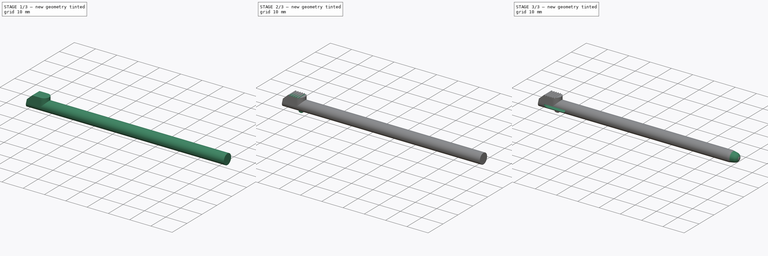
[diagram: build sequence overview — one tinted view per stage of 3, left to right]
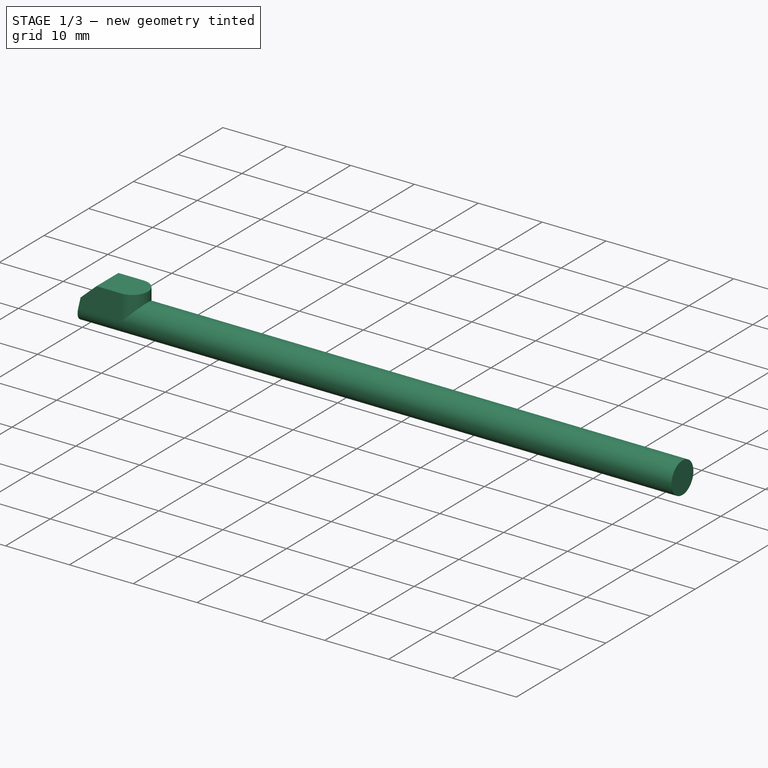
[diagram: stage 1 of 3 — iso view after this stage's code; geometry added in this stage tinted green]
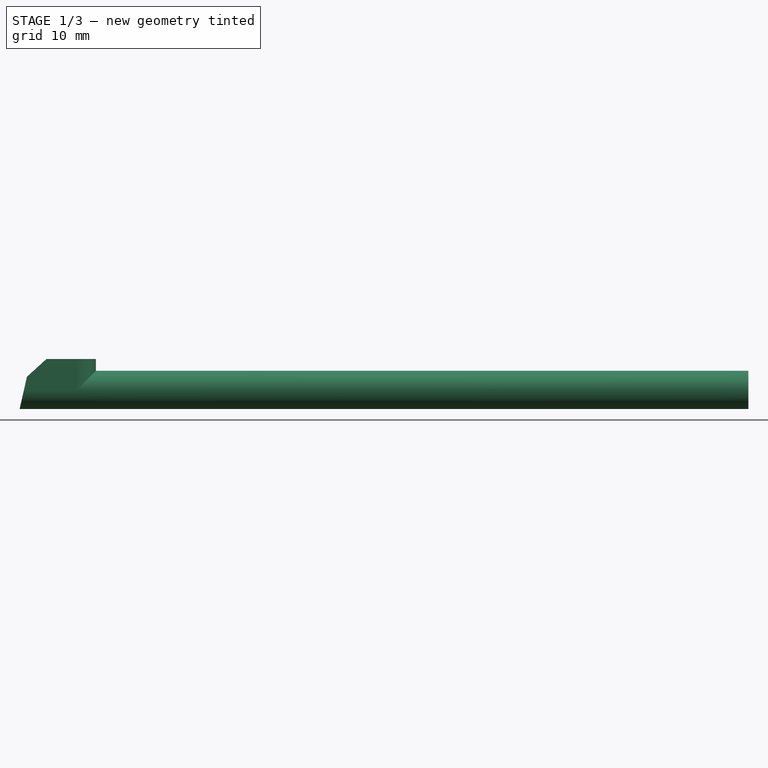
[diagram: stage 1 of 3 — front view after this stage's code; geometry added in this stage tinted green]
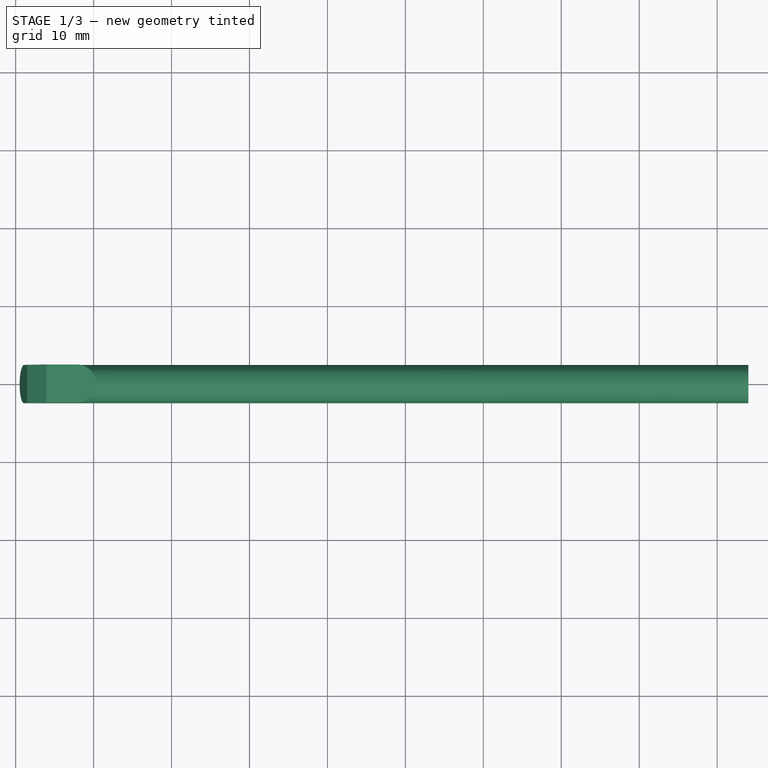
[diagram: stage 1 of 3 — top view after this stage's code; geometry added in this stage tinted green]
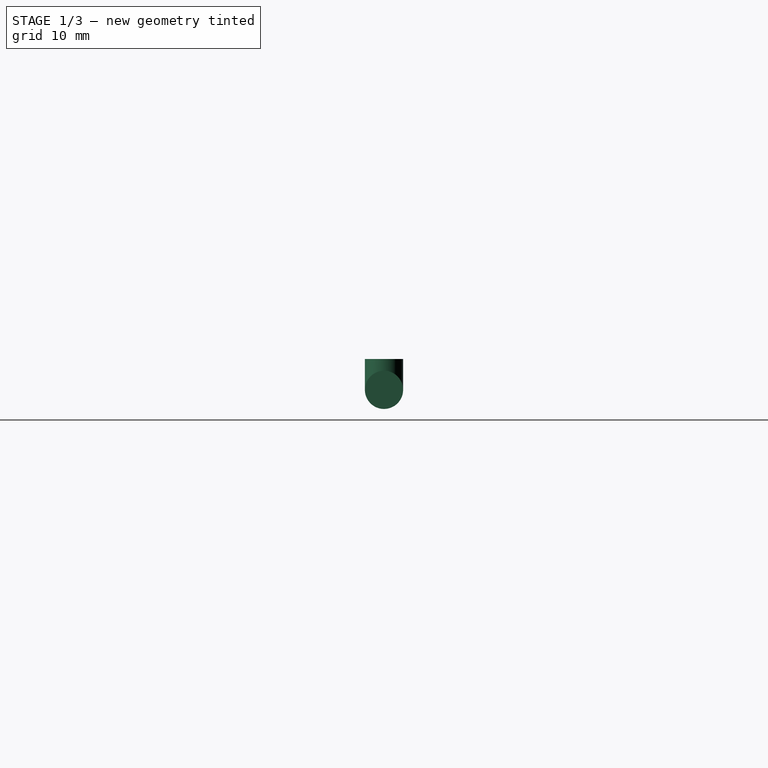
[diagram: stage 1 of 3 — right view after this stage's code; geometry added in this stage tinted green]
FCSTD DOCUMENT  (FreeCAD 1.0R39109 (Git))
Label: 2DS Stylus
License: Creative Commons Attribution-NonCommercial-ShareAlike
LicenseURL: http://creativecommons.org/licenses/by-nc-sa/4.0/
objects: Sketcher::SketchObject×8, PartDesign::Pocket×4, PartDesign::Pad×3, PartDesign::Groove×1, PartDesign::Body×1
note: 41 computed .brp shape members not serialized (recipe doc carries the construction recipe); baked Part::Feature solids carry a one-line shape summary decoded from their .brp

FEATURE [Sketcher::SketchObject] Sketch
  ArcFitTolerance = 0
  AttachmentSupport = -> [YZ_Plane]
  FullyConstrained = true
  MakeInternals = false
  MapMode = 5
  Placement = pos=(0,0,0) rot=(0.57735,0.57735,0.57735;2.0944rad)
  sketch-geometry (1):
    g0: Circle CenterX=0 CenterY=0 CenterZ=0 NormalX=0 NormalY=0 NormalZ=1 AngleXU=0 Radius=2.45
  constraints (2):
    c: Coincident(g0,g-1)
    c: Diameter(g0) = 4.9
FEATURE [PartDesign::Pad] Pad
  Direction = (1,0,0)
  Length = 94
  Length2 = 10
  Placement = pos=(0,0,0) rot=(0.57735,0.57735,0.57735;2.0944rad)
  Profile = -> Sketch
  ReferenceAxis = -> Sketch [N_Axis]
  Suppressed = false
  Type = 0
FEATURE [Sketcher::SketchObject] Sketch001
  ArcFitTolerance = 0
  AttachmentSupport = -> [XY_Plane]
  ExternalGeometry = -> [Pad]
  FullyConstrained = true
  MakeInternals = false
  MapMode = 5
  sketch-geometry (7):
    g0: LineSegment [constr] StartX=0 StartY=2.45 StartZ=0 EndX=10.3 EndY=2.45 EndZ=0
    g1: LineSegment [constr] StartX=10.3 StartY=2.45 StartZ=0 EndX=10.3 EndY=-2.45 EndZ=0
    g2: LineSegment [constr] StartX=10.3 StartY=-2.45 StartZ=0 EndX=0 EndY=-2.45 EndZ=0
    g3: LineSegment StartX=0 StartY=-2.45 StartZ=0 EndX=0 EndY=2.45 EndZ=0
    g4: ArcOfCircle CenterX=7.85 CenterY=6.95e-14 CenterZ=0 NormalX=0 NormalY=0 NormalZ=1 AngleXU=0 Radius=2.45 StartAngle=4.71239 EndAngle=7.85398
    g5: LineSegment StartX=0 StartY=2.45 StartZ=0 EndX=7.85 EndY=2.45 EndZ=0
    g6: LineSegment StartX=7.85 StartY=-2.45 StartZ=0 EndX=0 EndY=-2.45 EndZ=0
  constraints (17):
    c: Coincident(g0,g1)
    c: Coincident(g1,g2)
    c: Coincident(g2,g3)
    c: Coincident(g3,g0)
    c: Horizontal(g0)
    c: Horizontal(g2)
    c: Vertical(g1)
    c: Coincident(g0,g-3)
    c: Coincident(g2,g-3)
    c: Distance(g0) = 10.3
    c: Tangent(g4,g1)
    c: Tangent(g4,g0) = 1.5708
    c: Tangent(g4,g2) = 1.5708
    c: Coincident(g5,g3)
    c: Coincident(g5,g4)
    c: Coincident(g6,g4)
    c: Coincident(g6,g3)
FEATURE [PartDesign::Pad] Pad001
  BaseFeature = -> Pad
  Direction = (0,0,1)
  Length = 3.95
  Length2 = 10
  Placement = pos=(0,0,0) rot=(0.57735,0.57735,0.57735;2.0944rad)
  Profile = -> Sketch001
  ReferenceAxis = -> Sketch001 [N_Axis]
  Refine = true
  Suppressed = false
  Type = 0
FEATURE [Sketcher::SketchObject] Sketch002
  ArcFitTolerance = 0
  AttachmentSupport = -> [Pad001]
  ExternalGeometry = -> [Pad001]
  FullyConstrained = true
  MakeInternals = false
  MapMode = 5
  Placement = pos=(4.28e-14,-2.45,3e-16) rot=(0.57735,0.57735,-0.57735;2.0944rad)
  sketch-geometry (14):
    g0: LineSegment [constr] StartX=-1.95 StartY=0 StartZ=0 EndX=-1.95 EndY=1 EndZ=0
    g1: LineSegment [constr] StartX=-1.95 StartY=0 StartZ=0 EndX=2.45 EndY=1.9e-15 EndZ=0
    g2: LineSegment [constr] StartX=-3.95 StartY=-4.44e-14 StartZ=0 EndX=-3.95 EndY=3.2 EndZ=0
    g3: LineSegment [constr] StartX=2.45 StartY=0.512751 StartZ=0 EndX=2.45 EndY=1.9e-15 EndZ=0
    g4: LineSegment [constr] StartX=-3.95 StartY=3.2 StartZ=0 EndX=-1.95 EndY=1 EndZ=0
    g5: LineSegment [constr] StartX=-1.95 StartY=1 StartZ=0 EndX=2.45 EndY=1.9e-15 EndZ=0
    g6: LineSegment [constr] StartX=0.25 StartY=0.5 StartZ=0 EndX=0.360811 EndY=0.987566 EndZ=0
    g7: LineSegment [constr] StartX=-2.95 StartY=2.1 StartZ=0 EndX=-2.58003 EndY=2.43634 EndZ=0
    g8: LineSegment [constr] StartX=-1.95 StartY=1 StartZ=0 EndX=-1.68582 EndY=1.45271 EndZ=0
    g9: LineSegment StartX=-3.95 StartY=3.9433 StartZ=0 EndX=-1.68582 EndY=1.45271 EndZ=0
    g10: LineSegment StartX=-1.68582 StartY=1.45271 StartZ=0 EndX=2.45 EndY=0.512751 EndZ=0
    g11: LineSegment StartX=-3.95 StartY=3.9433 StartZ=0 EndX=-3.95 EndY=-0.487249 EndZ=0
    g12: LineSegment StartX=-3.95 StartY=-0.487249 StartZ=0 EndX=2.45 EndY=-0.487249 EndZ=0
    g13: LineSegment StartX=2.45 StartY=-0.487249 StartZ=0 EndX=2.45 EndY=0.512751 EndZ=0
  constraints (38):
    c: Vertical(g0)
    c: Distance(g0) = 1
    c: Coincident(g1,g-3)
    c: Distance(g1) = 4.4
    c: Coincident(g0,g1)
    c: PointOnObject(g0,g-1)
    c: Coincident(g2,g-4)
    c: PointOnObject(g2,g-4)
    c: Distance(g2) = 3.2
    c: Coincident(g3,g1)
    c: Vertical(g3)
    c: Coincident(g4,g2)
    c: Coincident(g4,g0)
    c: Coincident(g5,g4)
    c: Coincident(g5,g1)
    c: Symmetric(g4,g4,g7)
    c: Symmetric(g4,g5,g6)
    c: Coincident(g8,g4)
    c: PointOnObject(g9,g-4)
    c: Coincident(g9,g8)
    c: Coincident(g10,g9)
    c: Coincident(g10,g3)
    c: Perpendicular(g7,g4)
    c: Perpendicular(g7,g9)
    c: PointOnObject(g7,g9)
    c: PointOnObject(g6,g10)
    c: Perpendicular(g6,g10)
    c: Perpendicular(g6,g5)
    c: Distance(g7) = 0.5
    c: Equal(g7,g6)
    c: Coincident(g11,g9)
    c: Vertical(g11)
    c: Coincident(g12,g11)
    c: Horizontal(g12)
    c: Coincident(g13,g12)
    c: Coincident(g13,g10)
    c: Vertical(g13)
    c: Distance(g13) = 1
FEATURE [PartDesign::Pocket] Pocket
  BaseFeature = -> Pad001
  Direction = (-1.74e-14,1,1e-16)
  Length = 5
  Length2 = 5
  Placement = pos=(0,0,0) rot=(0.57735,0.57735,0.57735;2.0944rad)
  Profile = -> Sketch002
  ReferenceAxis = -> Sketch002 [N_Axis]
  Suppressed = false
  Type = 0
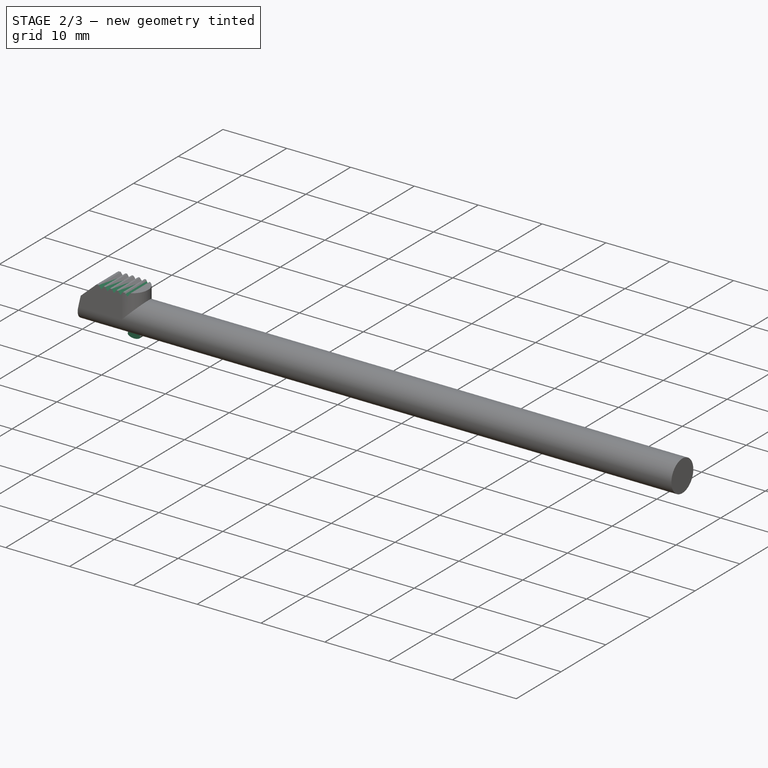
[diagram: stage 2 of 3 — iso view after this stage's code; geometry added in this stage tinted green]
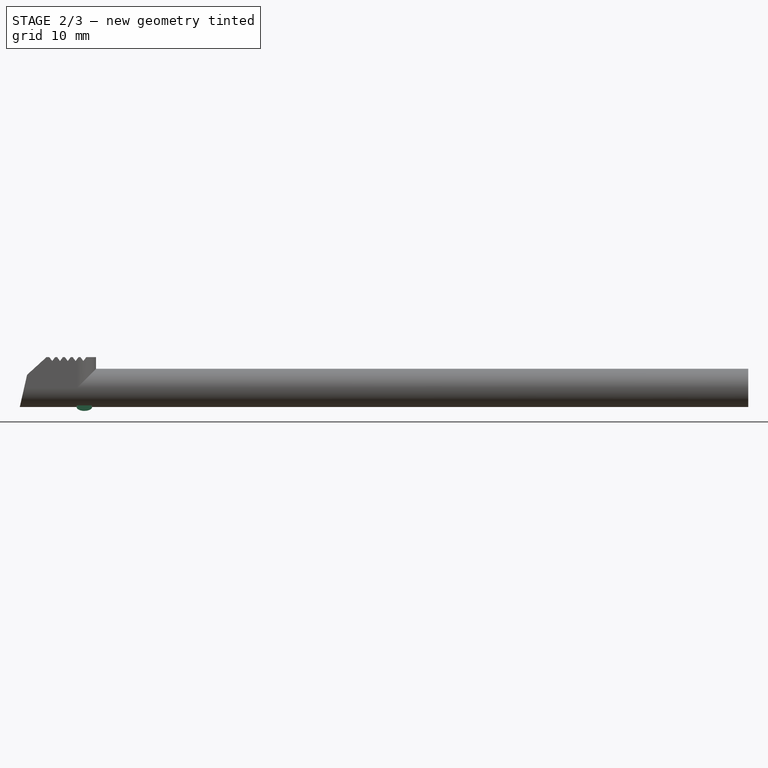
[diagram: stage 2 of 3 — front view after this stage's code; geometry added in this stage tinted green]
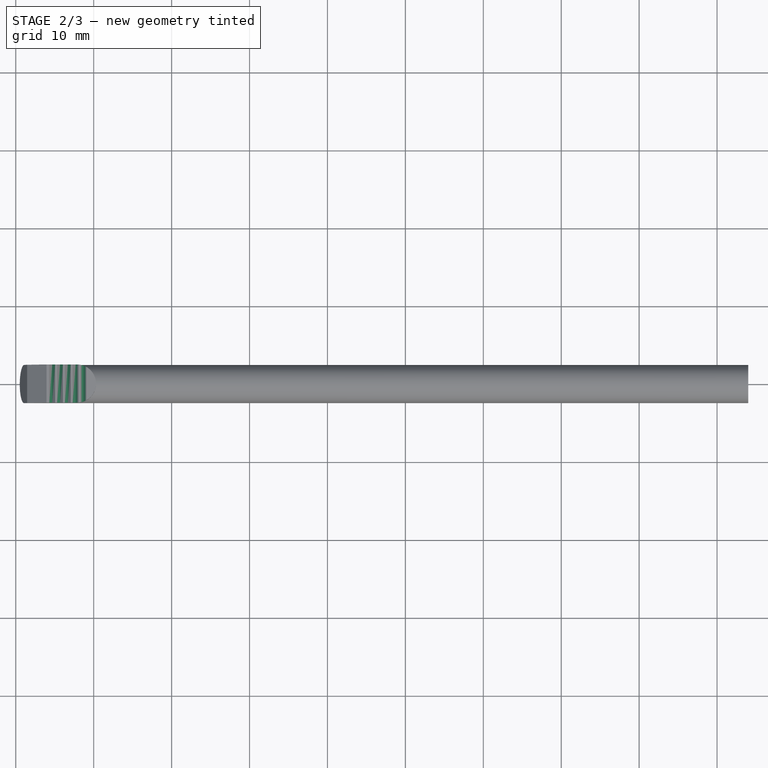
[diagram: stage 2 of 3 — top view after this stage's code; geometry added in this stage tinted green]
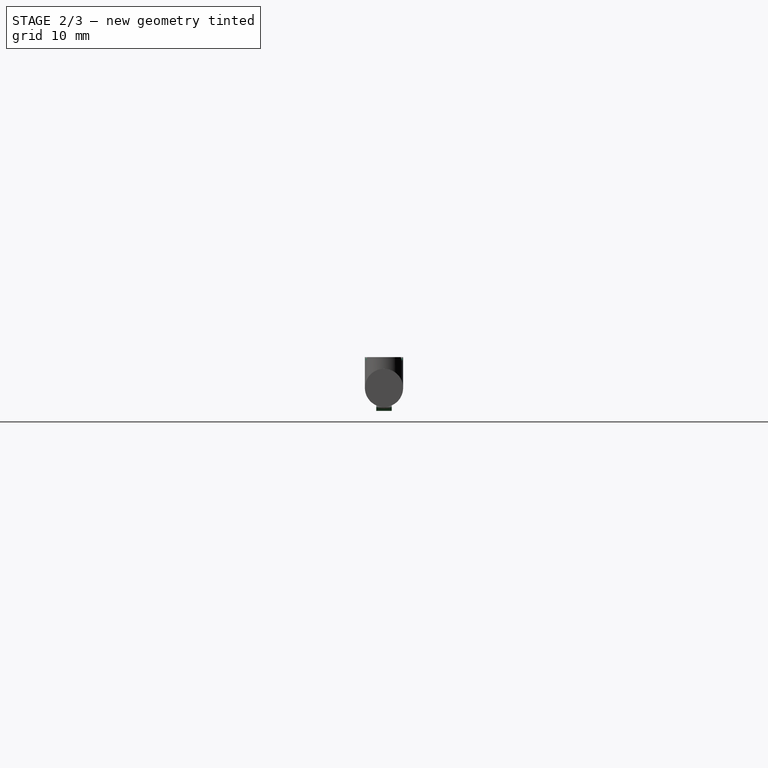
[diagram: stage 2 of 3 — right view after this stage's code; geometry added in this stage tinted green]
FEATURE [Sketcher::SketchObject] Sketch003
  ArcFitTolerance = 0
  AttachmentSupport = -> [Pocket]
  ExternalGeometry = -> [Pocket]
  FullyConstrained = true
  MakeInternals = false
  MapMode = 5
  Placement = pos=(4.28e-14,-2.45,1.1e-15) rot=(0.57735,0.57735,-0.57735;2.0944rad)
  sketch-geometry (28):
    g0: LineSegment [constr] StartX=-3.95 StartY=10.3 StartZ=0 EndX=-3.95 EndY=9.05 EndZ=0
    g1: LineSegment [constr] StartX=-3.95 StartY=9.05 StartZ=0 EndX=-3.95 EndY=8.3 EndZ=0
    g2: LineSegment StartX=-3.95 StartY=8.3 StartZ=0 EndX=-3.95 EndY=8.05 EndZ=0
    g3: LineSegment [constr] StartX=-3.95 StartY=8.05 StartZ=0 EndX=-3.95 EndY=7.3 EndZ=0
    g4: LineSegment StartX=-3.95 StartY=7.3 StartZ=0 EndX=-3.95 EndY=7.05 EndZ=0
    g5: LineSegment [constr] StartX=-3.95 StartY=7.05 StartZ=0 EndX=-3.95 EndY=6.3 EndZ=0
    g6: LineSegment StartX=-3.95 StartY=6.3 StartZ=0 EndX=-3.95 EndY=6.05 EndZ=0
    g7: LineSegment [constr] StartX=-3.95 StartY=6.05 StartZ=0 EndX=-3.95 EndY=5.3 EndZ=0
    g8: LineSegment StartX=-3.95 StartY=5.3 StartZ=0 EndX=-3.95 EndY=5.05 EndZ=0
    g9: LineSegment [constr] StartX=-3.95 StartY=5.05 StartZ=0 EndX=-3.95 EndY=4.3 EndZ=0
    g10: LineSegment StartX=-3.95 StartY=4.3 StartZ=0 EndX=-3.45 EndY=4.675 EndZ=0
    g11: LineSegment StartX=-3.45 StartY=4.675 StartZ=0 EndX=-3.95 EndY=5.05 EndZ=0
    g12: LineSegment StartX=-3.95 StartY=5.3 StartZ=0 EndX=-3.45 EndY=5.675 EndZ=0
    g13: LineSegment StartX=-3.45 StartY=5.675 StartZ=0 EndX=-3.95 EndY=6.05 EndZ=0
    g14: LineSegment StartX=-3.95 StartY=6.3 StartZ=0 EndX=-3.45 EndY=6.675 EndZ=0
    g15: LineSegment StartX=-3.45 StartY=6.675 StartZ=0 EndX=-3.95 EndY=7.05 EndZ=0
    g16: LineSegment StartX=-3.95 StartY=7.3 StartZ=0 EndX=-3.45 EndY=7.675 EndZ=0
    g17: LineSegment StartX=-3.45 StartY=7.675 StartZ=0 EndX=-3.95 EndY=8.05 EndZ=0
    g18: LineSegment StartX=-3.95 StartY=8.3 StartZ=0 EndX=-3.45 EndY=8.675 EndZ=0
    g19: LineSegment StartX=-3.45 StartY=8.675 StartZ=0 EndX=-3.95 EndY=9.05 EndZ=0
    g20: LineSegment [constr] StartX=-3.45 StartY=8.675 StartZ=0 EndX=-3.95 EndY=8.675 EndZ=0
    g21: LineSegment [constr] StartX=-3.45 StartY=7.675 StartZ=0 EndX=-3.95 EndY=7.675 EndZ=0
    g22: LineSegment [constr] StartX=-3.45 StartY=6.675 StartZ=0 EndX=-3.95 EndY=6.675 EndZ=0
    g23: LineSegment [constr] StartX=-3.45 StartY=5.675 StartZ=0 EndX=-3.95 EndY=5.675 EndZ=0
    g24: LineSegment [constr] StartX=-3.45 StartY=4.675 StartZ=0 EndX=-3.95 EndY=4.675 EndZ=0
    g25: LineSegment StartX=-3.95 StartY=9.05 StartZ=0 EndX=-4.95 EndY=9.05 EndZ=0
    g26: LineSegment StartX=-4.95 StartY=9.05 StartZ=0 EndX=-4.95 EndY=4.3 EndZ=0
    g27: LineSegment StartX=-4.95 StartY=4.3 StartZ=0 EndX=-3.95 EndY=4.3 EndZ=0
  constraints (78):
    c: Coincident(g0,g-3)
    c: PointOnObject(g0,g-3)
    c: Distance(g0) = 1.25
    c: Coincident(g1,g0)
    c: PointOnObject(g1,g-3)
    c: Coincident(g2,g1)
    c: Vertical(g2)
    c: Coincident(g3,g2)
    c: Vertical(g3)
    c: Distance(g1) = 0.75
    c: Distance(g2) = 0.25
    c: Equal(g1,g3)
    c: Coincident(g4,g3)
    c: Vertical(g4)
    c: Coincident(g5,g4)
    c: Vertical(g5)
    c: Coincident(g6,g5)
    c: Vertical(g6)
    c: Coincident(g7,g6)
    c: Vertical(g7)
    c: Coincident(g8,g7)
    c: Vertical(g8)
    c: Coincident(g9,g8)
    c: Vertical(g9)
    c: Equal(g3,g5)
    c: Equal(g5,g7)
    c: Equal(g9,g7)
    c: Equal(g8,g6)
    c: Equal(g6,g4)
    c: Equal(g2,g4)
    c: Coincident(g10,g9)
    c: Coincident(g11,g10)
    c: Coincident(g11,g8)
    c: Coincident(g12,g7)
    c: Coincident(g13,g12)
    c: Coincident(g13,g6)
    c: Coincident(g14,g5)
    c: Coincident(g15,g14)
    c: Coincident(g15,g4)
    c: Coincident(g16,g3)
    c: Coincident(g17,g16)
    c: Coincident(g17,g2)
    c: Coincident(g18,g1)
    c: Coincident(g19,g18)
    c: Coincident(g19,g0)
    c: Coincident(g20,g18)
    c: PointOnObject(g20,g1)
    c: Horizontal(g20)
    c: Coincident(g21,g16)
    c: PointOnObject(g21,g3)
    c: Horizontal(g21)
    c: Coincident(g22,g14)
    c: PointOnObject(g22,g5)
    c: Horizontal(g22)
    c: Coincident(g23,g12)
    c: PointOnObject(g23,g7)
    c: Horizontal(g23)
    c: Coincident(g24,g10)
    c: PointOnObject(g24,g9)
    c: Horizontal(g24)
    c: Equal(g24,g23)
    c: Equal(g23,g22)
    c: Equal(g22,g21)
    c: Equal(g21,g20)
    c: Equal(g19,g18)
    c: Equal(g17,g16)
    c: Equal(g15,g14)
    c: Equal(g13,g12)
    c: Equal(g11,g10)
    c: Distance(g24) = 0.5
    c: Coincident(g25,g19)
    c: Horizontal(g25)
    c: Coincident(g26,g25)
    c: Vertical(g26)
    c: Coincident(g27,g26)
    c: Coincident(g27,g10)
    c: Horizontal(g27)
    c: Distance(g25) = 1
FEATURE [PartDesign::Pocket] Pocket001
  BaseFeature = -> Pocket
  Direction = (-1.74e-14,1,1e-16)
  Length = 5
  Length2 = 5
  Placement = pos=(0,0,0) rot=(0.57735,0.57735,0.57735;2.0944rad)
  Profile = -> Sketch003
  ReferenceAxis = -> Sketch003 [N_Axis]
  Suppressed = false
  Type = 0
FEATURE [Sketcher::SketchObject] Sketch004
  ArcFitTolerance = 0
  AttachmentSupport = -> [XZ_Plane]
  ExternalGeometry = -> [Pocket001]
  FullyConstrained = true
  MakeInternals = false
  MapMode = 5
  Placement = pos=(0,0,0) rot=(1,0,0;1.5708rad)
  sketch-geometry (9):
    g0: LineSegment [constr] StartX=0 StartY=0 StartZ=0 EndX=9.8 EndY=0 EndZ=0
    g1: LineSegment [constr] StartX=9.8 StartY=0 StartZ=0 EndX=9.8 EndY=-2.45 EndZ=0
    g2: LineSegment [constr] StartX=9.8 StartY=-2.45 StartZ=0 EndX=7.8 EndY=-2.45 EndZ=0
    g3: LineSegment [constr] StartX=7.8 StartY=-2.45 StartZ=0 EndX=0.512751 EndY=-2.45 EndZ=0
    g4: Ellipse CenterX=8.8 CenterY=-2.45 CenterZ=0 NormalX=0 NormalY=0 NormalZ=1 MajorRadius=1 MinorRadius=0.5 AngleXU=0
    g5: LineSegment [constr] StartX=9.8 StartY=-2.45 StartZ=0 EndX=7.8 EndY=-2.45 EndZ=0
    g6: LineSegment [constr] StartX=8.8 StartY=-1.95 StartZ=0 EndX=8.8 EndY=-2.95 EndZ=0
    g7: GeomPoint [constr] X=9.66603 Y=-2.45 Z=0
    g8: GeomPoint [constr] X=7.93397 Y=-2.45 Z=0
  constraints (15):
    c: Coincident(g0,g-1)
    c: PointOnObject(g0,g-1)
    c: Coincident(g1,g0)
    c: Vertical(g1)
    c: Coincident(g2,g1)
    c: Horizontal(g2)
    c: Coincident(g3,g2)
    c: Coincident(g3,g-3)
    c: Horizontal(g3)
    c: InternalAlignment(g5-g8 -> g4) x4
    c: Distance(g5) = 2
    c: Distance(g6) = 1
    c: Coincident(g5,g1)
    c: Coincident(g5,g2)
    c: Distance(g0) = 9.8
FEATURE [PartDesign::Pad] Pad002
  BaseFeature = -> Pocket001
  Direction = (0,-1,2e-16)
  Length = 1
  Length2 = 1
  Placement = pos=(0,0,0) rot=(0.57735,0.57735,0.57735;2.0944rad)
  Profile = -> Sketch004
  ReferenceAxis = -> Sketch004 [N_Axis]
  Suppressed = false
  Type = 4
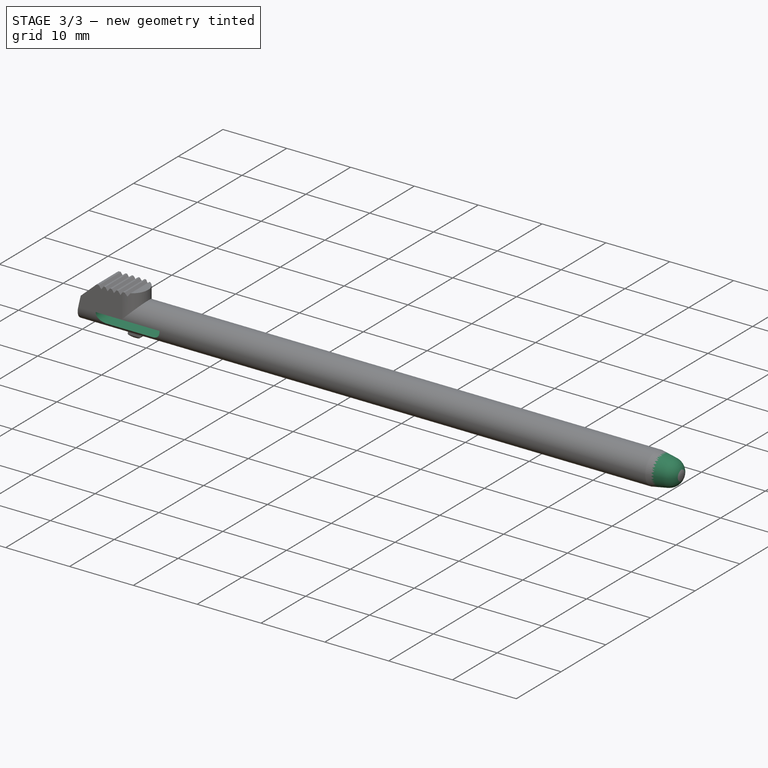
[diagram: stage 3 of 3 — iso view after this stage's code; geometry added in this stage tinted green]
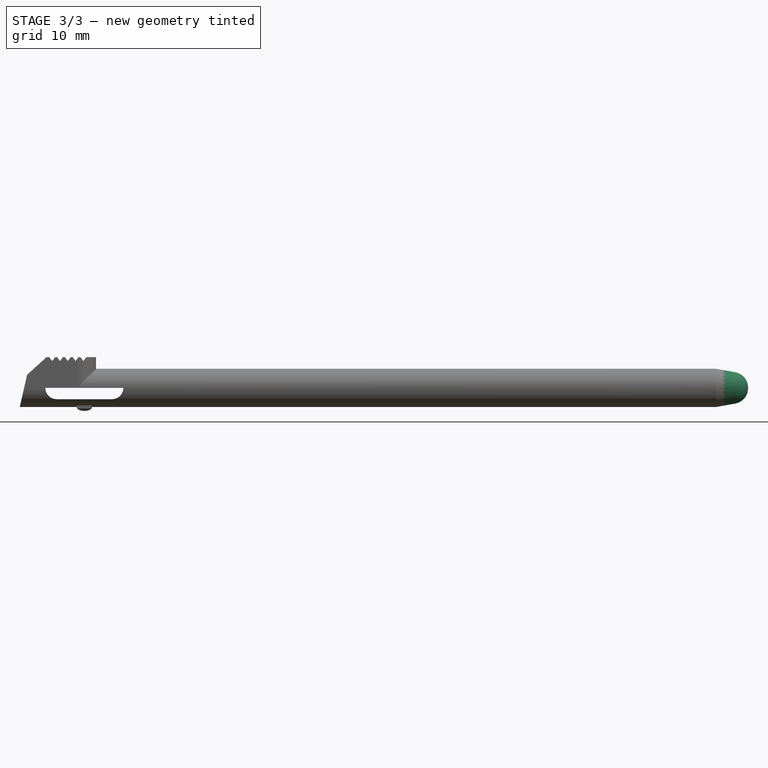
[diagram: stage 3 of 3 — front view after this stage's code; geometry added in this stage tinted green]
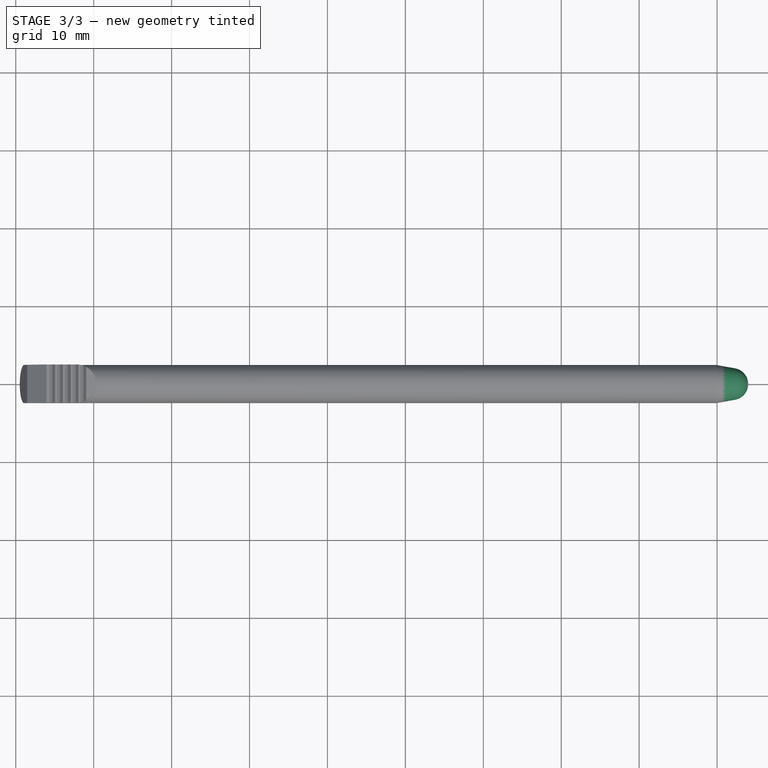
[diagram: stage 3 of 3 — top view after this stage's code; geometry added in this stage tinted green]
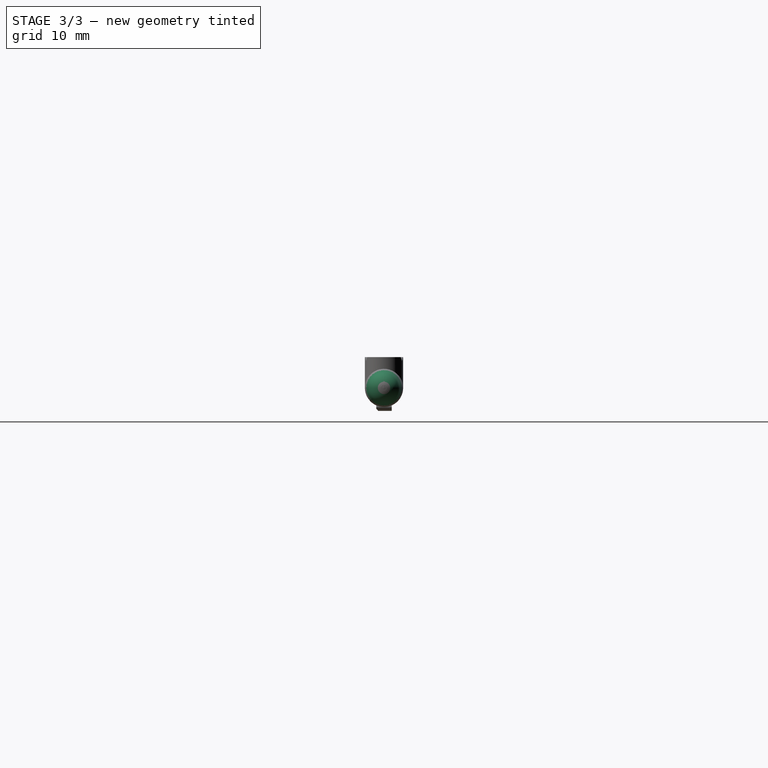
[diagram: stage 3 of 3 — right view after this stage's code; geometry added in this stage tinted green]
FEATURE [Sketcher::SketchObject] Sketch005
  ArcFitTolerance = 0
  AttachmentSupport = -> [XZ_Plane]
  ExternalGeometry = -> [Pad002]
  FullyConstrained = true
  MakeInternals = false
  MapMode = 5
  Placement = pos=(0,0,0) rot=(1,0,0;1.5708rad)
  sketch-geometry (6):
    g0: ArcOfCircle CenterX=91.95 CenterY=-1.03406e-05 CenterZ=0 NormalX=0 NormalY=0 NormalZ=1 AngleXU=0 Radius=2.05 StartAngle=5.04422e-06 EndAngle=1.39348
    g1: LineSegment StartX=92.3116 StartY=2.01785 StartZ=0 EndX=89.9 EndY=2.45 EndZ=0
    g2: LineSegment StartX=89.9 StartY=2.45 StartZ=0 EndX=94 EndY=2.45 EndZ=0
    g3: LineSegment StartX=94 StartY=2.45 StartZ=0 EndX=95 EndY=2.45 EndZ=0
    g4: LineSegment StartX=95 StartY=2.45 StartZ=0 EndX=95 EndY=7.77e-14 EndZ=0
    g5: LineSegment StartX=95 StartY=7.78e-14 StartZ=0 EndX=94 EndY=7.78e-14 EndZ=0
  constraints (16):
    c: Tangent(g-3,g0)
    c: Coincident(g2,g1)
    c: Coincident(g2,g-3)
    c: Horizontal(g2)
    c: Tangent(g1,g0) = -1.5708
    c: Distance(g2) = 4.1
    c: Diameter(g0) = 4.1
    c: Symmetric(g2,g-3,g0)
    c: Coincident(g3,g2)
    c: Horizontal(g3)
    c: Coincident(g4,g3)
    c: Vertical(g4)
    c: Coincident(g5,g4)
    c: Coincident(g5,g0)
    c: Horizontal(g5)
    c: Distance(g3) = 1
FEATURE [Sketcher::SketchObject] Sketch006
  ArcFitTolerance = 0
  AttachmentSupport = -> [Pad002]
  ExternalGeometry = -> [Pad002]
  FullyConstrained = true
  MakeInternals = false
  MapMode = 5
  Placement = pos=(4.28e-14,-2.45,2.7e-15) rot=(0.57735,0.57735,-0.57735;2.0944rad)
  sketch-geometry (8):
    g0: ArcOfCircle [constr] CenterX=0 CenterY=12.35 CenterZ=0 NormalX=0 NormalY=0 NormalZ=1 AngleXU=0 Radius=1.45 StartAngle=0 EndAngle=3.14159
    g1: ArcOfCircle [constr] CenterX=-2e-15 CenterY=5.25 CenterZ=0 NormalX=0 NormalY=0 NormalZ=1 AngleXU=0 Radius=1.45 StartAngle=3.14159 EndAngle=6.28319
    g2: LineSegment [constr] StartX=-1.45 StartY=12.35 StartZ=0 EndX=-1.45 EndY=5.25 EndZ=0
    g3: LineSegment StartX=1.45 StartY=5.25 StartZ=0 EndX=1.45 EndY=12.35 EndZ=0
    g4: LineSegment [constr] StartX=2.45 StartY=8.8 StartZ=0 EndX=1.45 EndY=8.8 EndZ=0
    g5: ArcOfCircle CenterX=-1e-16 CenterY=12.35 CenterZ=0 NormalX=0 NormalY=0 NormalZ=1 AngleXU=0 Radius=1.45 StartAngle=3.09583e-11 EndAngle=1.5708
    g6: ArcOfCircle CenterX=-2.1e-15 CenterY=5.25 CenterZ=0 NormalX=0 NormalY=0 NormalZ=1 AngleXU=0 Radius=1.45 StartAngle=4.71239 EndAngle=6.28319
    g7: LineSegment StartX=-2.4e-15 StartY=13.8 StartZ=0 EndX=-2.4e-15 EndY=3.8 EndZ=0
  constraints (22):
    c: Tangent(g0,g2) = -1.5708
    c: Tangent(g2,g1) = -1.5708
    c: Tangent(g1,g3) = -1.5708
    c: Tangent(g3,g0) = -1.5708
    c: Equal(g0,g1)
    c: PointOnObject(g0,g-2)
    c: PointOnObject(g1,g-4)
    c: Coincident(g4,g-3)
    c: Horizontal(g4)
    c: Symmetric(g0,g1,g4)
    c: Distance(g4) = 1
    c: Distance(g3) = 7.1
    c: Coincident(g5,g3)
    c: PointOnObject(g5,g0)
    c: Coincident(g6,g3)
    c: PointOnObject(g6,g1)
    c: Equal(g6,g1)
    c: Equal(g5,g0)
    c: Coincident(g7,g5)
    c: Coincident(g7,g6)
    c: Vertical(g7)
    c: PointOnObject(g6,g-4)
FEATURE [PartDesign::Pocket] Pocket002
  BaseFeature = -> Pad002
  Direction = (-1.75e-14,1,-1.1e-15)
  Length = 10
  Length2 = 5
  Placement = pos=(0,0,0) rot=(0.57735,0.57735,0.57735;2.0944rad)
  Profile = -> Sketch006
  ReferenceAxis = -> Sketch006 [N_Axis]
  Suppressed = false
  Type = 0
FEATURE [PartDesign::Groove] Groove
  Angle = 360
  Angle2 = 60
  Axis = (1,0,0)
  Base = (0,0,0)
  BaseFeature = -> Pocket002
  Placement = pos=(0,0,0) rot=(0.57735,0.57735,0.57735;2.0944rad)
  Profile = -> Sketch005
  ReferenceAxis = -> Sketch005 [H_Axis]
  Reversed = true
  Suppressed = false
  Type = 0
FEATURE [Sketcher::SketchObject] Sketch007
  ArcFitTolerance = 0
  AttachmentSupport = -> [YZ_Plane]
  ExternalGeometry = -> [Groove]
  FullyConstrained = true
  MakeInternals = false
  MapMode = 5
  Placement = pos=(0,0,0) rot=(0.57735,0.57735,0.57735;2.0944rad)
  sketch-geometry (7):
    g0: LineSegment [constr] StartX=-1 StartY=-2.95 StartZ=0 EndX=1 EndY=-2.95 EndZ=0
    g1: LineSegment [constr] StartX=-0.747522 StartY=-2.95 StartZ=0 EndX=-1 EndY=-2.63975 EndZ=0
    g2: LineSegment [constr] StartX=-2.02017 StartY=-1.38614 StartZ=0 EndX=-1.7677 EndY=-1.69639 EndZ=0
    g3: LineSegment [constr] StartX=-1.7677 StartY=-1.69639 StartZ=0 EndX=-1 EndY=-2.63975 EndZ=0
    g4: LineSegment StartX=-0.747522 StartY=-2.95 StartZ=0 EndX=-2.02017 EndY=-2.95 EndZ=0
    g5: LineSegment StartX=-2.02017 StartY=-2.95 StartZ=0 EndX=-2.02017 EndY=-1.38614 EndZ=0
    g6: LineSegment StartX=-2.02017 StartY=-1.38614 StartZ=0 EndX=-0.747522 EndY=-2.95 EndZ=0
  constraints (19):
    c: Coincident(g0,g-4)
    c: Coincident(g0,g-5)
    c: PointOnObject(g1,g0)
    c: PointOnObject(g1,g-4)
    c: PointOnObject(g2,g-3)
    c: PointOnObject(g2,g-3)
    c: Distance(g2) = 0.4
    c: Distance(g1) = 0.4
    c: Coincident(g3,g2)
    c: Coincident(g3,g1)
    c: Parallel(g2,g3)
    c: Parallel(g3,g1)
    c: Coincident(g4,g1)
    c: Horizontal(g4)
    c: Coincident(g5,g4)
    c: Coincident(g5,g2)
    c: Vertical(g5)
    c: Coincident(g6,g5)
    c: Coincident(g6,g4)
FEATURE [PartDesign::Pocket] Pocket003
  BaseFeature = -> Groove
  Direction = (-1,0,0)
  Length = 100
  Length2 = 100
  Placement = pos=(0,0,0) rot=(0.57735,0.57735,0.57735;2.0944rad)
  Profile = -> Sketch007
  ReferenceAxis = -> Sketch007 [N_Axis]
  Suppressed = false
  Type = 4
FEATURE [PartDesign::Body] Body  label="Nintendo 2DS Stylus"
  AllowCompound = false
  Group = -> [Sketch,Pad,Sketch001,Pad001,Sketch002,Pocket,Sketch003,Pocket001,Sketch004,Pad002,Sketch005,Sketch006,Pocket002,Groove,Sketch007,Pocket003]
  Origin = -> Origin
  Placement = pos=(0,0,0) rot=(1,0,0;0.887674rad)
  Tip = -> Pocket003
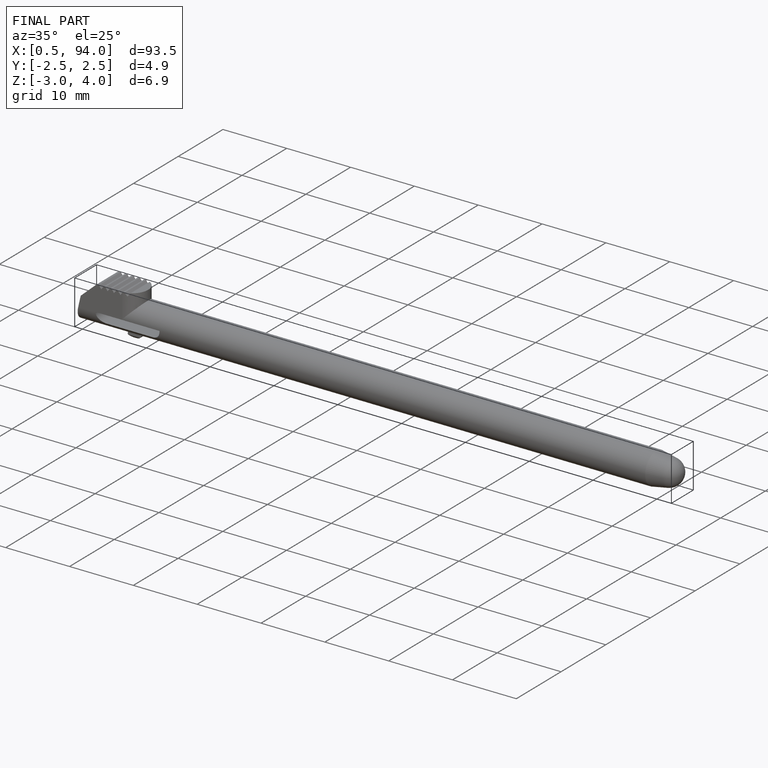
[diagram: finished part — iso view with bounding-box wireframe]
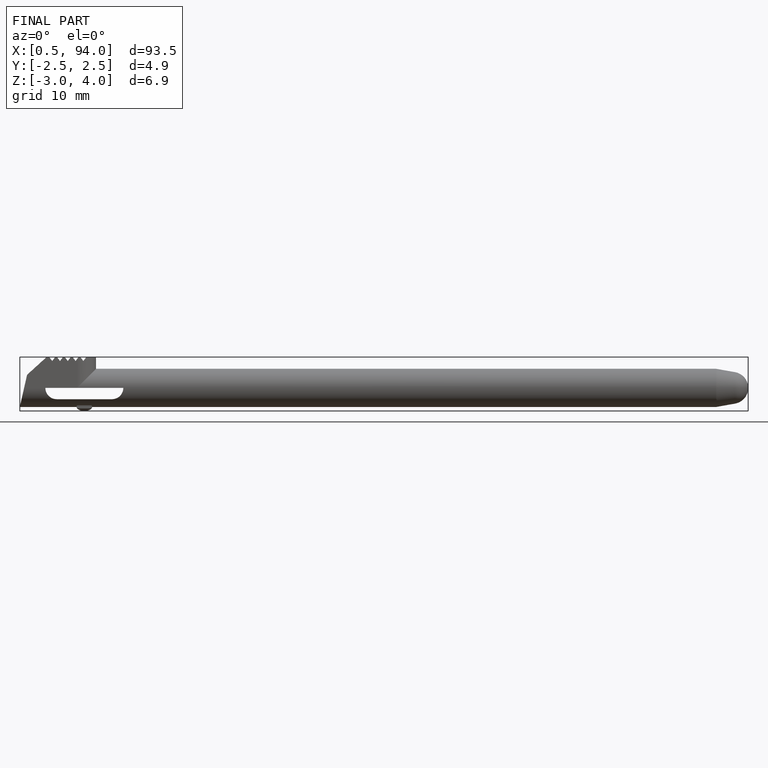
[diagram: finished part — front view with bounding-box wireframe]
